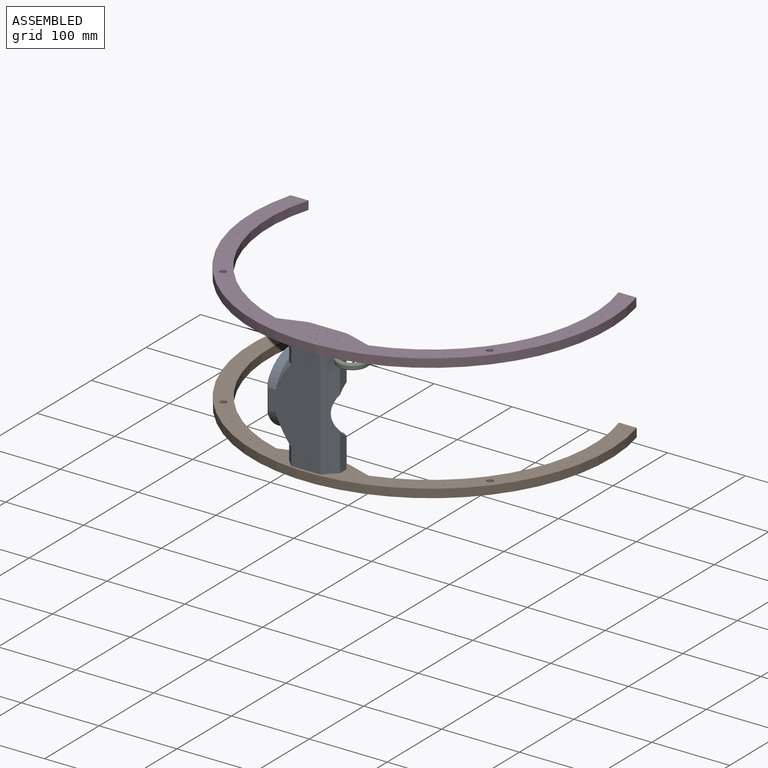
[diagram: assembled view]
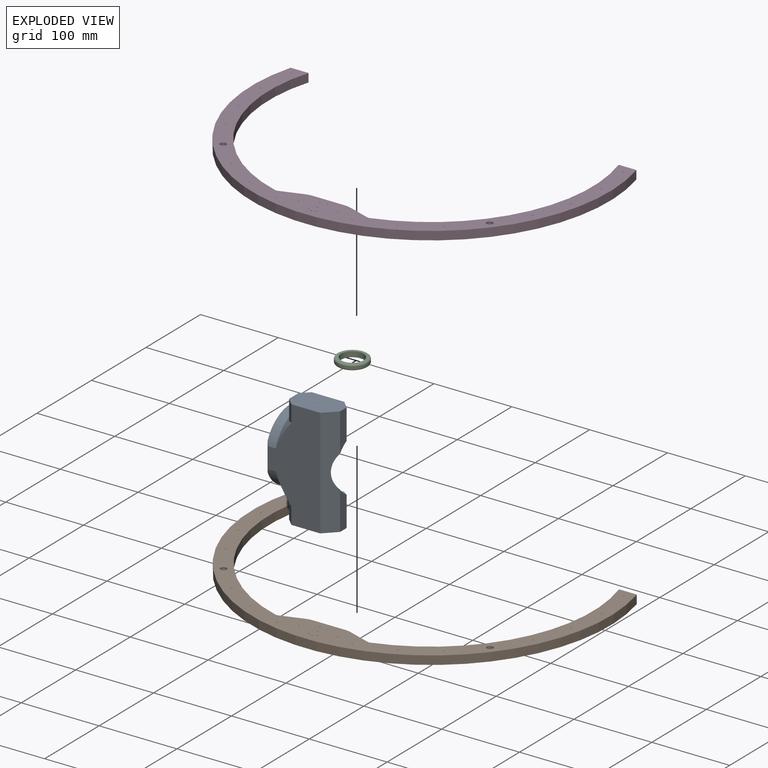
[diagram: exploded view]
GUIDED TOUR — MATED ASSEMBLY (Onshape document 583ccf91df39c11036320b96, AutoMate assembly 583ccf91df39c11036320b96_db331fde2a7be32577c9f7a0_26116c46a7ac03a35c773aca_default)

This assembly has 4 components, labeled P0..P3 below (a component is one placed occurrence of a part; the same part can appear more than once), held together by 3 mates. A mate is a constraint between two components; its type names the relative motion it leaves free:
  FASTENED — locks the two components together rigidly (no relative motion),
  REVOLUTE — leaves rotation about the listed axis free (a hinge).
Axis/direction vectors are unit vectors and 'through' points are millimeter coordinates, both in the assembly's world frame.

MATES
  1. REVOLUTE "Revolute 1": P0 <-> P3, axis (0.000, 0.000, 1.000) through (-22.68, -209.72, 133.85) mm
  2. REVOLUTE "Revolute 2": P2 <-> P3, axis (0.000, 0.000, 1.000) through (26.05, -215.23, 133.85) mm
  3. FASTENED "Fastened 1": P1 <-> P0, direction (0.000, 0.000, 1.000) through (-21.92, -210.10, -6.15) mm

ASSEMBLY ORDER
  1. P2 — the base component [order verified]
  2. P0 [order verified]
  3. P1 [order verified]
  4. P3 [order verified]
Order-tag legend:
  [order verified] — this step's position reverses a verified removal order: the component was checked to insert without passing through the ones already placed.

Of the 4 components, 3 carry the full construction recipe — the FeatureScript program that regenerates the part's solid from scratch; the rest are supplied as boundary geometry only.
Each toured component is shown spotlighted twice — in the assembled view, then in the exploded view, where a leader line traces a displaced component back to its assembled socket (saturated green if recipe-attached, orange if geometry-only; every other component desaturated gray) — followed by its recipe or geometry summary and the mates that hold it.
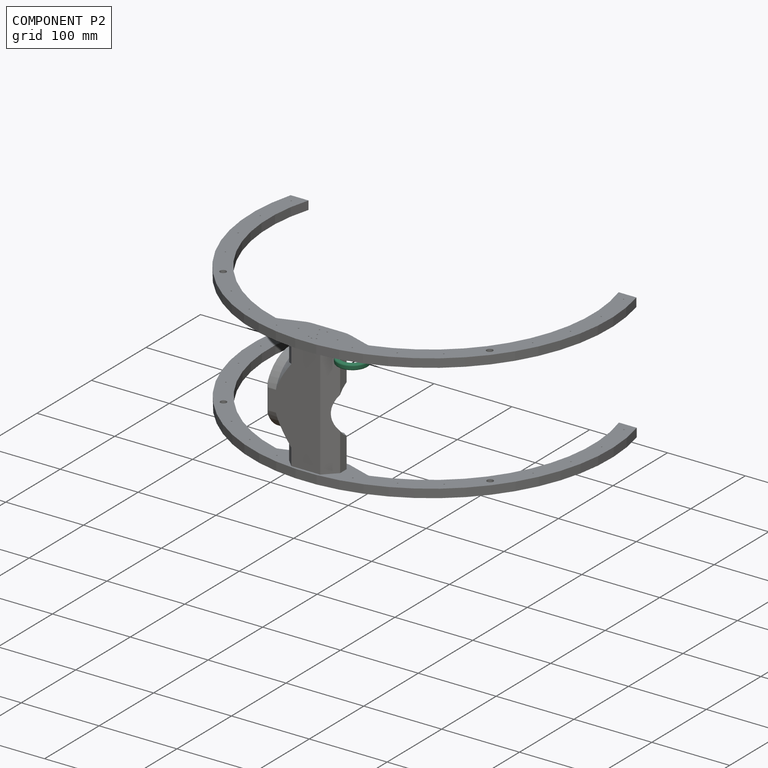
[diagram: component P2 — assembled]
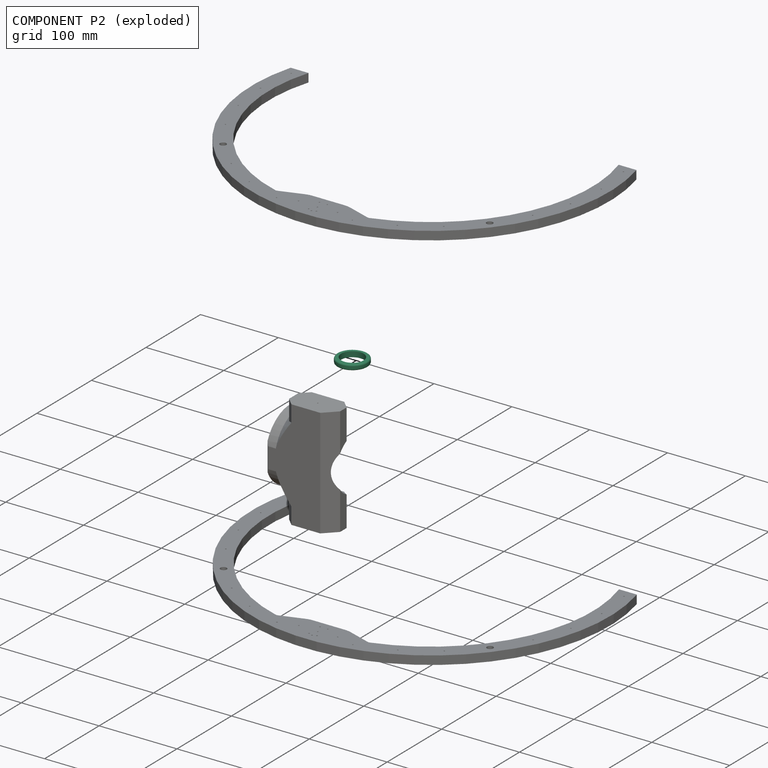
[diagram: component P2 — exploded]
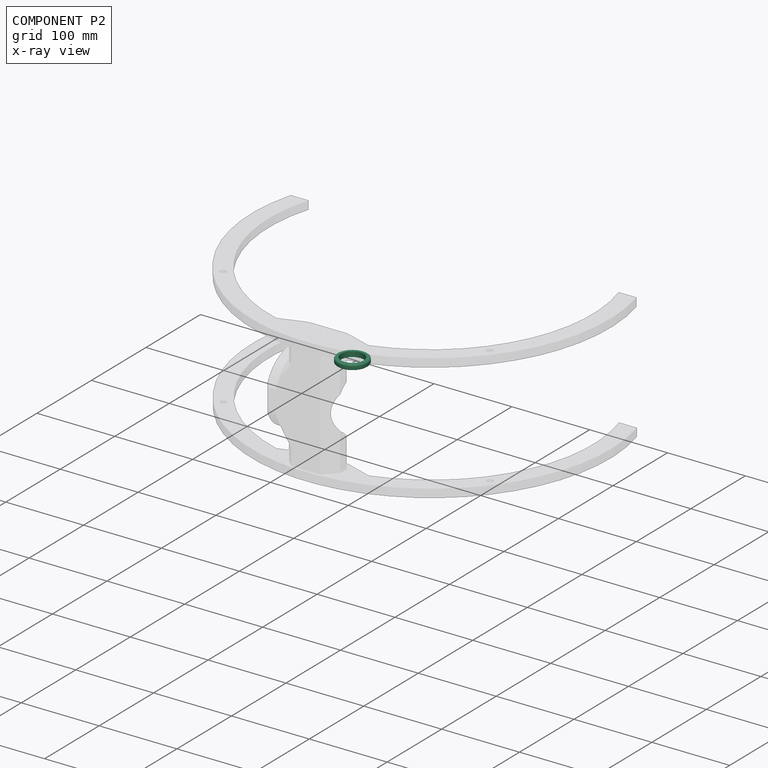
[diagram: component P2 — x-ray view]
COMPONENT P2 — recipe-attached (CADFS 00278941, mesh-verified: the recipe's output STEP matches this component's geometry to below the mesh-comparison resolution (tessellation chordal tolerance ~0.0834 mm)).
Held by: REVOLUTE mate "Revolute 2" to P3.
Construction recipe (FeatureScript — the CAD program that rebuilds this solid; sketch coordinates are in the units given by the * unit suffixes, e.g. mm):

FeatureScript 1511;
import(path : "onshape/std/geometry.fs", version : "1511.0");
import(path : "onshape/std/common.fs", version : "1511.0");
const mm = millimeter;
const VERTEX = EntityType.VERTEX;
const EDGE = EntityType.EDGE;
const FACE = EntityType.FACE;
const BODY = EntityType.BODY;
function v(x, y){return vector(x, y);}
function OD(order){return orderDisambiguation(order);}
function OSD(set){return originalSetDisambiguation(set);}
function TD(topology){return topologyDisambiguation(topology);}
function TDD(query){return trueDependencyDisambiguation(query);}
function sQuery(a, b, c) {return sketchEntityQuery(a, b, c);}

annotation { "Feature Type Name" : "Feature", "Feature Type Description" : "" }
export const myFeature = defineFeature(function(context is Context, id is Id, definition is map)
    precondition{}
    {
        {
            var Q0;
            Q0=qCreatedBy(makeId("Top.planeOp"),FACE);
            var sketch = newSketch(context, id + "F0", { "sketchPlane" : qUnion([Q0])});
            skCircle(sketch, "E0", {"center": v(0, 0) * mm, "radius": 19.5 * mm});
            skCircle(sketch, "E1", {"center": v(0, 0) * mm, "radius": 14.5 * mm});
            skSolve(sketch);
        }
        {
            var Q0;
            Q0 = qSketchRegion(id + "F0", true);
            extrude(context, id + "F1", {"entities" : qUnion([Q0]), "depth" : 3.5 * mm});
        }
        {
            var Q0;
            Q0=makeQuery(id+"F1.opExtrude","CAP_EDGE",EDGE,{"disambiguationData":[OSD([sQuery(id+"F0.wireOp",EDGE,"E0")])],"isStart":false});
            fillet(context, id + "F2", {"entities" : qUnion([Q0]), "radius" : 2 * mm, "tangentPropagation" : true, "allowEdgeOverflow" : false});
        }
        {
            var Q0;
            Q0=makeQuery(id+"F1.opExtrude","SWEPT_BODY",BODY,{"disambiguationData":[OSD([sQuery(id+"F0.wireOp",EDGE,"E0"),sQuery(id+"F0.wireOp",EDGE,"E1")])]});
            var Q1;
            Q1=qCreatedBy(makeId("Top.planeOp"),FACE);
            mirror(context, id + "F3", {"operationType" : NewBodyOperationType.ADD, "entities" : qUnion([Q0]), "mirrorPlane" : qUnion([Q1])});
        }
    });
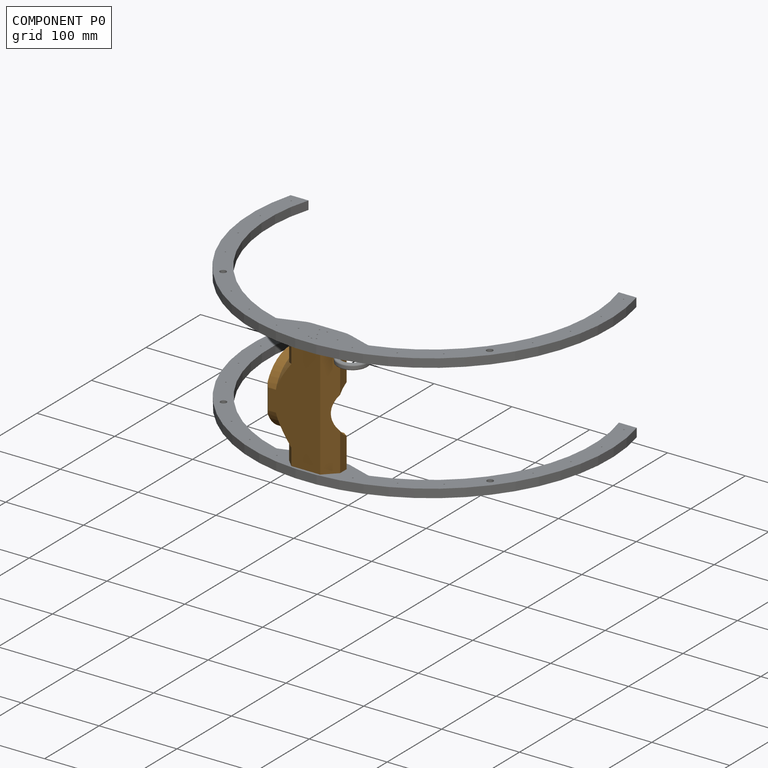
[diagram: component P0 — assembled]
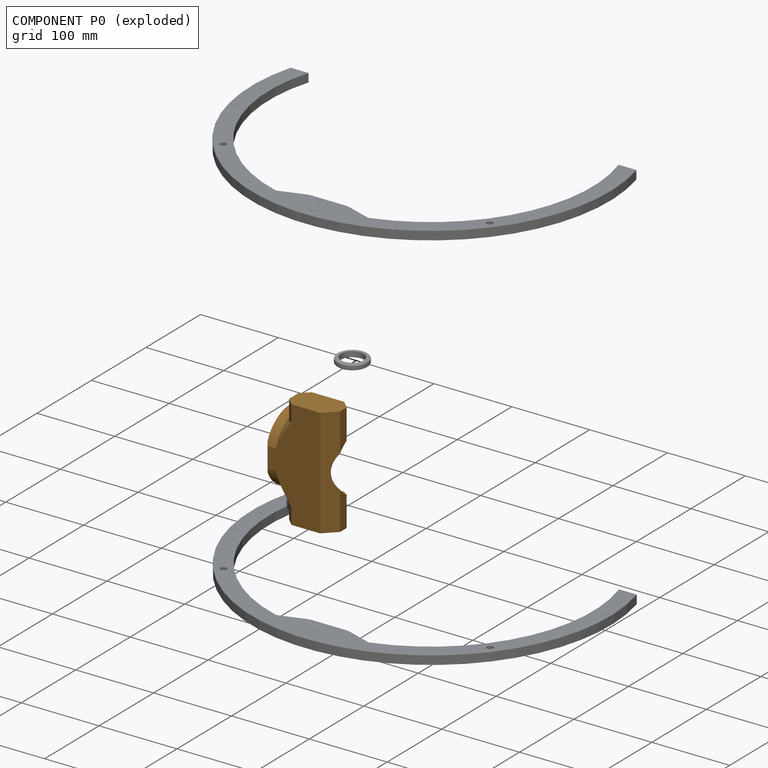
[diagram: component P0 — exploded]
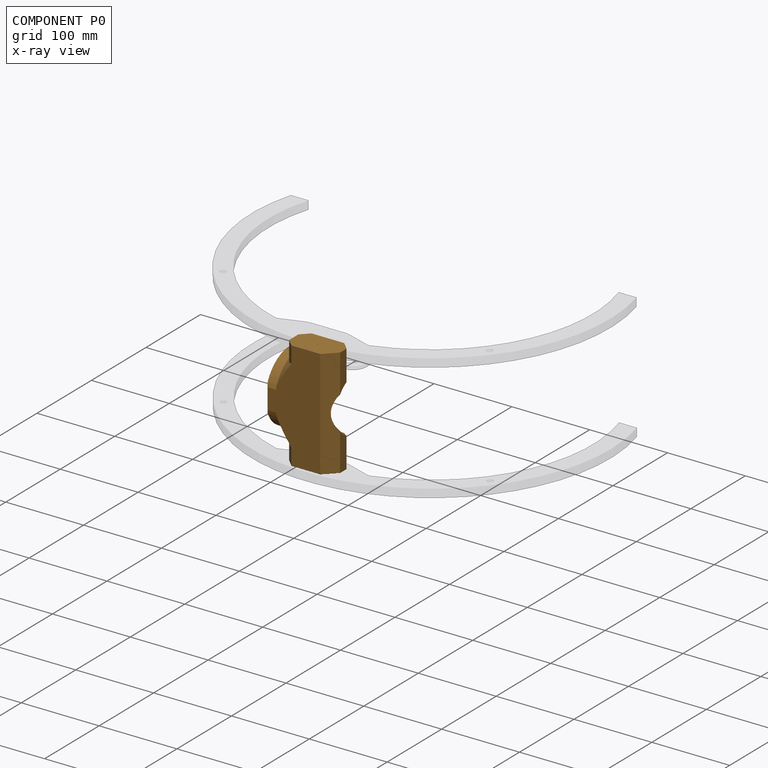
[diagram: component P0 — x-ray view]
COMPONENT P0 — geometry summary (no construction recipe available for this part):
  bounding box: 140.0 x 107.1 x 84.0 mm
  B-rep topology: 1 solid, 32 faces, 168 edges
  volume: 264262 mm^3 (21% of its bounding box)
Held by: REVOLUTE mate "Revolute 1" to P3; FASTENED mate "Fastened 1" to P1.
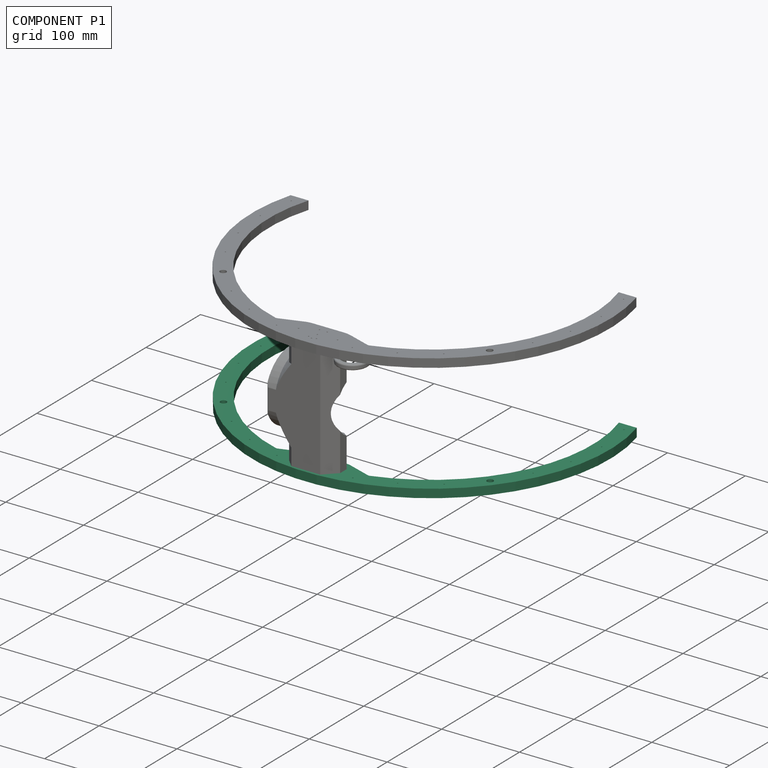
[diagram: component P1 — assembled]
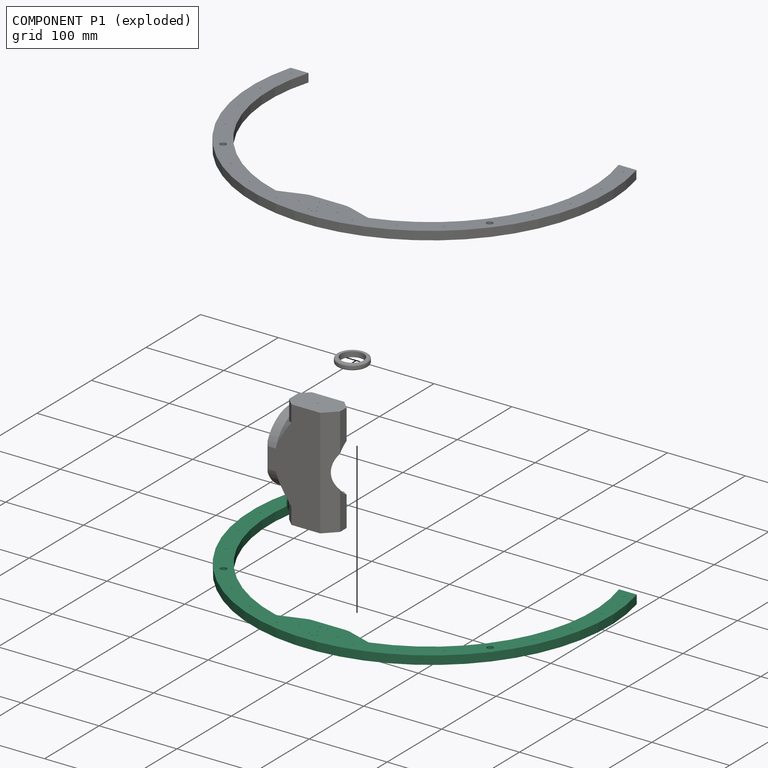
[diagram: component P1 — exploded]
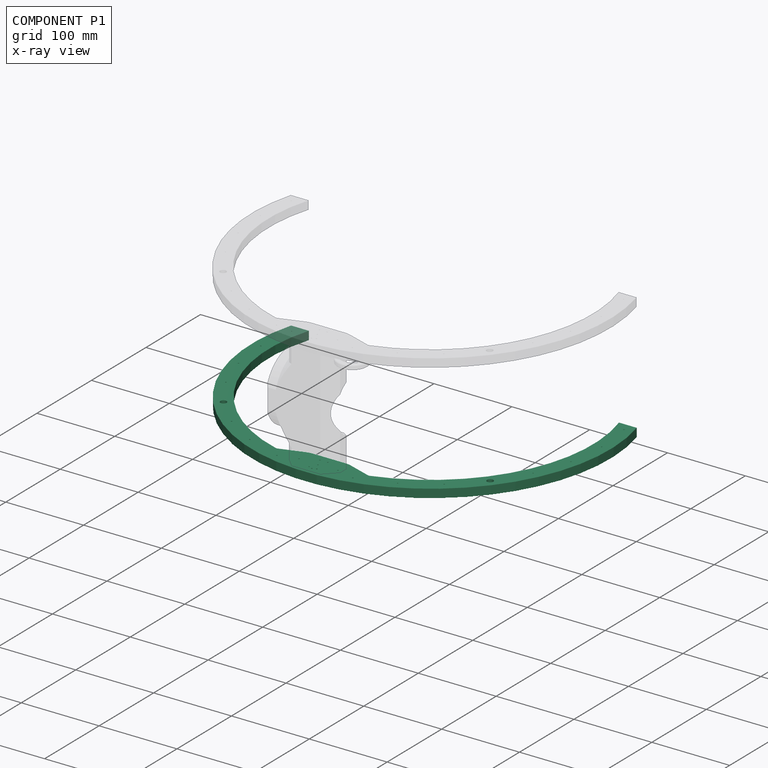
[diagram: component P1 — x-ray view]
COMPONENT P1 — recipe-attached (CADFS 00352402, mesh-verified: the recipe's output STEP matches this component's geometry to below the mesh-comparison resolution (tessellation chordal tolerance ~0.815 mm)).
Held by: FASTENED mate "Fastened 1" to P0.
Construction recipe (FeatureScript — the CAD program that rebuilds this solid; sketch coordinates are in the units given by the * unit suffixes, e.g. mm):

FeatureScript 1511;
import(path : "onshape/std/geometry.fs", version : "1511.0");
import(path : "onshape/std/common.fs", version : "1511.0");
const mm = millimeter;
const VERTEX = EntityType.VERTEX;
const EDGE = EntityType.EDGE;
const FACE = EntityType.FACE;
const BODY = EntityType.BODY;
function v(x, y){return vector(x, y);}
function OD(order){return orderDisambiguation(order);}
function OSD(set){return originalSetDisambiguation(set);}
function TD(topology){return topologyDisambiguation(topology);}
function TDD(query){return trueDependencyDisambiguation(query);}
function sQuery(a, b, c) {return sketchEntityQuery(a, b, c);}

annotation { "Feature Type Name" : "Feature", "Feature Type Description" : "" }
export const myFeature = defineFeature(function(context is Context, id is Id, definition is map)
    precondition{}
    {
        {
            var Q0;
            Q0=qCreatedBy(makeId("Top.planeOp"),FACE);
            var sketch = newSketch(context, id + "F0", { "sketchPlane" : qUnion([Q0])});
            skArc(sketch, "E0", {"start": v(-199.16, 60) * mm, "mid": v(-183.03, -98.8) * mm, "end": v(-59.12, -199.42) * mm});
            skArc(sketch, "E1", {"start": v(-222.04, 60) * mm, "mid": v(0, -230) * mm, "end": v(222.04, 60) * mm});
            skLineSegment(sketch, "E2", {"start": v(0, 0) * mm, "end": v(-114.72, 0) * mm, "construction": true});
            skLineSegment(sketch, "E3", {"start": v(0, 0) * mm, "end": v(0, 60) * mm, "construction": true});
            skLineSegment(sketch, "E4", {"start": v(199.16, 60) * mm, "end": v(222.04, 60) * mm});
            skLineSegment(sketch, "E5.MirrorCS", {"start": v(-199.16, 60) * mm, "end": v(-222.04, 60) * mm});
            skLineSegment(sketch, "E6", {"start": v(0, -208) * mm, "end": v(0, -188) * mm, "construction": true});
            skLineSegment(sketch, "E7", {"start": v(0, -188) * mm, "end": v(25, -188) * mm});
            skLineSegment(sketch, "E8", {"start": v(25, -188) * mm, "end": v(59.12, -199.42) * mm});
            skLineSegment(sketch, "E9.MirrorCS", {"start": v(0, -188) * mm, "end": v(-25, -188) * mm});
            skLineSegment(sketch, "E10.MirrorCS", {"start": v(-25, -188) * mm, "end": v(-59.12, -199.42) * mm});
            skArc(sketch, "E11.trimOffspring", {"start": v(59.12, -199.42) * mm, "mid": v(183.03, -98.8) * mm, "end": v(199.16, 60) * mm});
            skPoint(sketch, "E12.orphan", {"position": v(0, 60) * mm});
            skSolve(sketch);
        }
        {
            var Q0;
            Q0=qSketchRegion(id+"F0",true);
            extrude(context, id + "F1", {"entities" : qUnion([Q0]), "depth" : 11 * mm});
        }
        {
            var Q0;
            Q0=makeQuery(id+"F1.opExtrude","SWEPT_EDGE",EDGE,{"disambiguationData":[OSD([sQuery(id+"F0.wireOp",EDGE,"E7"),sQuery(id+"F0.wireOp",EDGE,"E8")])]});
            var Q1;
            Q1=makeQuery(id+"F1.opExtrude","SWEPT_EDGE",EDGE,{"disambiguationData":[OSD([sQuery(id+"F0.wireOp",EDGE,"E9.MirrorCS"),sQuery(id+"F0.wireOp",EDGE,"E10.MirrorCS")])]});
            fillet(context, id + "F2", {"entities" : qUnion([Q0, Q1]), "radius" : 28.52 * mm, "tangentPropagation" : true, "allowEdgeOverflow" : false});
        }
        {
            var Q0;
            Q0=makeQuery(id+"F1.opExtrude","SWEPT_EDGE",EDGE,{"disambiguationData":[OSD([sQuery(id+"F0.wireOp",EDGE,"E8"),sQuery(id+"F0.wireOp",EDGE,"E11.trimOffspring")])]});
            var Q1;
            Q1=makeQuery(id+"F1.opExtrude","SWEPT_EDGE",EDGE,{"disambiguationData":[OSD([sQuery(id+"F0.wireOp",EDGE,"E0"),sQuery(id+"F0.wireOp",EDGE,"E10.MirrorCS")])]});
            fillet(context, id + "F3", {"entities" : qUnion([Q0, Q1]), "radius" : 5 * mm, "tangentPropagation" : true, "allowEdgeOverflow" : false});
        }
        {
            var Q0;
            Q0=qCreatedBy(makeId("Top.planeOp"),FACE);
            var sketch = newSketch(context, id + "F4", { "sketchPlane" : qUnion([Q0])});
            skLineSegment(sketch, "E13", {"start": v(0, 0) * mm, "end": v(174.2, -171.38) * mm, "construction": true});
            skLineSegment(sketch, "E14", {"start": v(0, 0) * mm, "end": v(0, 36.6) * mm, "construction": true});
            skLineSegment(sketch, "E15.MirrorCS", {"start": v(0, 0) * mm, "end": v(-174.2, -171.38) * mm, "construction": true});
            skSolve(sketch);
        }
        {
            var Q0;
            Q0=makeQuery(id+"F1.opExtrude","CAP_FACE",FACE,{"disambiguationData":[OSD([sQuery(id+"F0.wireOp",EDGE,"E0"),sQuery(id+"F0.wireOp",EDGE,"E1"),sQuery(id+"F0.wireOp",EDGE,"E4"),sQuery(id+"F0.wireOp",EDGE,"E5.MirrorCS"),sQuery(id+"F0.wireOp",EDGE,"E7"),sQuery(id+"F0.wireOp",EDGE,"E8"),sQuery(id+"F0.wireOp",EDGE,"E9.MirrorCS"),sQuery(id+"F0.wireOp",EDGE,"E10.MirrorCS"),sQuery(id+"F0.wireOp",EDGE,"E11.trimOffspring")])],"isStart":false});
            var sketch = newSketch(context, id + "F5", { "sketchPlane" : qUnion([Q0])});
            skArc(sketch, "E16.0", {"start": v(-217.44, 26.07) * mm, "mid": v(0, -219) * mm, "end": v(217.44, 26.07) * mm, "construction": true});
            skCircle(sketch, "E17", {"center": v(0, -219) * mm, "radius": 0.75 * mm});
            skCircle(sketch, "E18.1.0", {"center": v(48.73, -213.5) * mm, "radius": 0.75 * mm});
            skCircle(sketch, "E18.2.0", {"center": v(95.02, -197.31) * mm, "radius": 0.75 * mm});
            skCircle(sketch, "E18.3.0", {"center": v(136.54, -171.22) * mm, "radius": 0.75 * mm});
            skCircle(sketch, "E18.4.0", {"center": v(171.22, -136.54) * mm, "radius": 0.75 * mm});
            skCircle(sketch, "E18.5.0", {"center": v(197.31, -95.02) * mm, "radius": 0.75 * mm});
            skCircle(sketch, "E18.6.0", {"center": v(213.5, -48.73) * mm, "radius": 0.75 * mm});
            skCircle(sketch, "E18.7.0", {"center": v(219, 0) * mm, "radius": 0.75 * mm});
            skCircle(sketch, "E18.8.0", {"center": v(213.5, 48.73) * mm, "radius": 0.75 * mm});
            skCircle(sketch, "E18.9.0", {"center": v(197.31, 95.02) * mm, "radius": 0.75 * mm});
            skCircle(sketch, "E18.10.0", {"center": v(171.22, 136.54) * mm, "radius": 0.75 * mm});
            skCircle(sketch, "E18.11.0", {"center": v(136.54, 171.22) * mm, "radius": 0.75 * mm});
            skCircle(sketch, "E18.12.0", {"center": v(95.02, 197.31) * mm, "radius": 0.75 * mm});
            skCircle(sketch, "E18.13.0", {"center": v(48.73, 213.5) * mm, "radius": 0.75 * mm});
            skCircle(sketch, "E18.14.0", {"center": v(0, 219) * mm, "radius": 0.75 * mm});
            skCircle(sketch, "E18.15.0", {"center": v(-48.73, 213.5) * mm, "radius": 0.75 * mm});
            skCircle(sketch, "E18.16.0", {"center": v(-95.02, 197.31) * mm, "radius": 0.75 * mm});
            skCircle(sketch, "E18.17.0", {"center": v(-136.54, 171.22) * mm, "radius": 0.75 * mm});
            skCircle(sketch, "E18.18.0", {"center": v(-171.22, 136.54) * mm, "radius": 0.75 * mm});
            skCircle(sketch, "E18.19.0", {"center": v(-197.31, 95.02) * mm, "radius": 0.75 * mm});
            skCircle(sketch, "E18.20.0", {"center": v(-213.5, 48.73) * mm, "radius": 0.75 * mm});
            skCircle(sketch, "E18.21.0", {"center": v(-219, 0) * mm, "radius": 0.75 * mm});
            skCircle(sketch, "E18.22.0", {"center": v(-213.5, -48.73) * mm, "radius": 0.75 * mm});
            skCircle(sketch, "E18.23.0", {"center": v(-197.31, -95.02) * mm, "radius": 0.75 * mm});
            skCircle(sketch, "E18.24.0", {"center": v(-171.22, -136.54) * mm, "radius": 0.75 * mm});
            skCircle(sketch, "E18.25.0", {"center": v(-136.54, -171.22) * mm, "radius": 0.75 * mm});
            skCircle(sketch, "E18.26.0", {"center": v(-95.02, -197.31) * mm, "radius": 0.75 * mm});
            skCircle(sketch, "E18.27.0", {"center": v(-48.73, -213.5) * mm, "radius": 0.75 * mm});
            skCircle(sketch, "E19", {"center": v(-5, -197) * mm, "radius": 0.75 * mm});
            skLineSegment(sketch, "E20", {"start": v(0, 0) * mm, "end": v(0, -93.12) * mm, "construction": true});
            skLineSegment(sketch, "E21", {"start": v(0, -219) * mm, "end": v(0, -197) * mm, "construction": true});
            skLineSegment(sketch, "E22", {"start": v(0, -197) * mm, "end": v(-5, -197) * mm, "construction": true});
            skCircle(sketch, "E23.MirrorC", {"center": v(5, -197) * mm, "radius": 0.75 * mm});
            skLineSegment(sketch, "E24", {"start": v(-5, -197) * mm, "end": v(-5, -217) * mm, "construction": true});
            skPoint(sketch, "E25.endSnap0", {"position": v(-5, -207) * mm});
            skLineSegment(sketch, "E26", {"start": v(-5, -207) * mm, "end": v(-25, -207) * mm, "construction": true});
            skCircle(sketch, "E27", {"center": v(0, -208) * mm, "radius": 0.75 * mm});
            skCircle(sketch, "E28.MirrorC", {"center": v(-5, -217) * mm, "radius": 0.75 * mm});
            skCircle(sketch, "E29", {"center": v(-25, -207) * mm, "radius": 0.75 * mm});
            skCircle(sketch, "E30.MirrorC", {"center": v(5, -217) * mm, "radius": 0.75 * mm});
            skCircle(sketch, "E31.MirrorC", {"center": v(25, -207) * mm, "radius": 0.75 * mm});
            skSolve(sketch);
        }
        {
            var Q0;
            Q0=qSketchRegion(id+"F5",true);
            extrude(context, id + "F6", {"entities" : qUnion([Q0]), "operationType" : NewBodyOperationType.REMOVE, "endBound" : BoundingType.THROUGH_ALL, "oppositeDirection" : true, "depth" : 25 * mm});
        }
        {
            var Q0;
            Q0=makeQuery(id+"F1.opExtrude","CAP_FACE",FACE,{"disambiguationData":[OSD([sQuery(id+"F0.wireOp",EDGE,"E0"),sQuery(id+"F0.wireOp",EDGE,"E1"),sQuery(id+"F0.wireOp",EDGE,"E4"),sQuery(id+"F0.wireOp",EDGE,"E5.MirrorCS"),sQuery(id+"F0.wireOp",EDGE,"E7"),sQuery(id+"F0.wireOp",EDGE,"E8"),sQuery(id+"F0.wireOp",EDGE,"E9.MirrorCS"),sQuery(id+"F0.wireOp",EDGE,"E10.MirrorCS"),sQuery(id+"F0.wireOp",EDGE,"E11.trimOffspring")])],"isStart":false});
            var sketch = newSketch(context, id + "F7", { "sketchPlane" : qUnion([Q0])});
            skCircle(sketch, "E32", {"center": v(-171.22, -136.54) * mm, "radius": 4 * mm});
            skLineSegment(sketch, "E33", {"start": v(0, 0) * mm, "end": v(0, -100.25) * mm, "construction": true});
            skCircle(sketch, "E34.MirrorC", {"center": v(171.22, -136.54) * mm, "radius": 4 * mm});
            skLineSegment(sketch, "E35", {"start": v(0, 0) * mm, "end": v(171.22, -136.54) * mm, "construction": true});
            skSolve(sketch);
        }
        {
            var Q0;
            Q0=qSketchRegion(id+"F7",true);
            extrude(context, id + "F8", {"entities" : qUnion([Q0]), "operationType" : NewBodyOperationType.REMOVE, "endBound" : BoundingType.THROUGH_ALL, "oppositeDirection" : true, "depth" : 25 * mm});
        }
    });
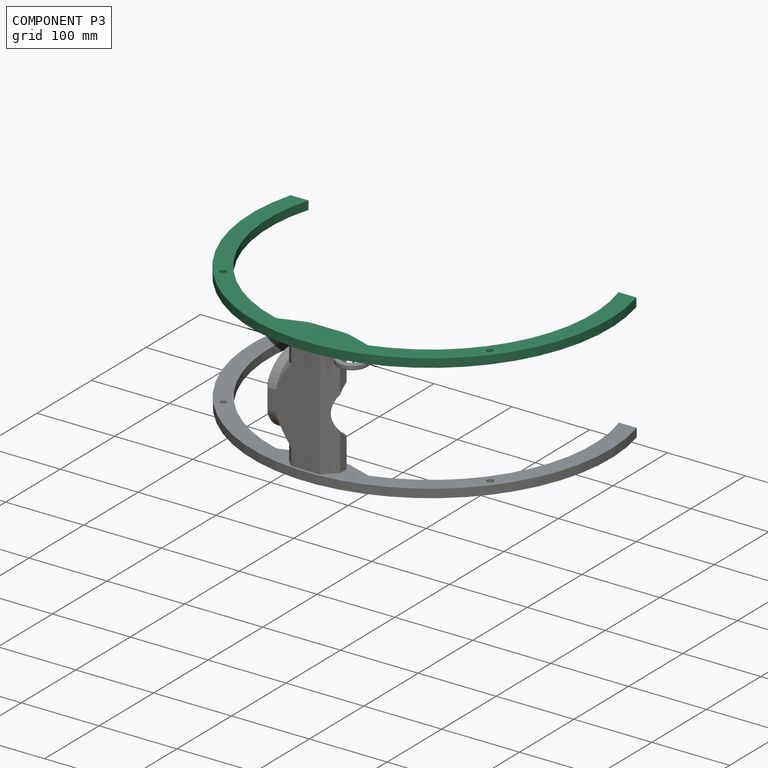
[diagram: component P3 — assembled]
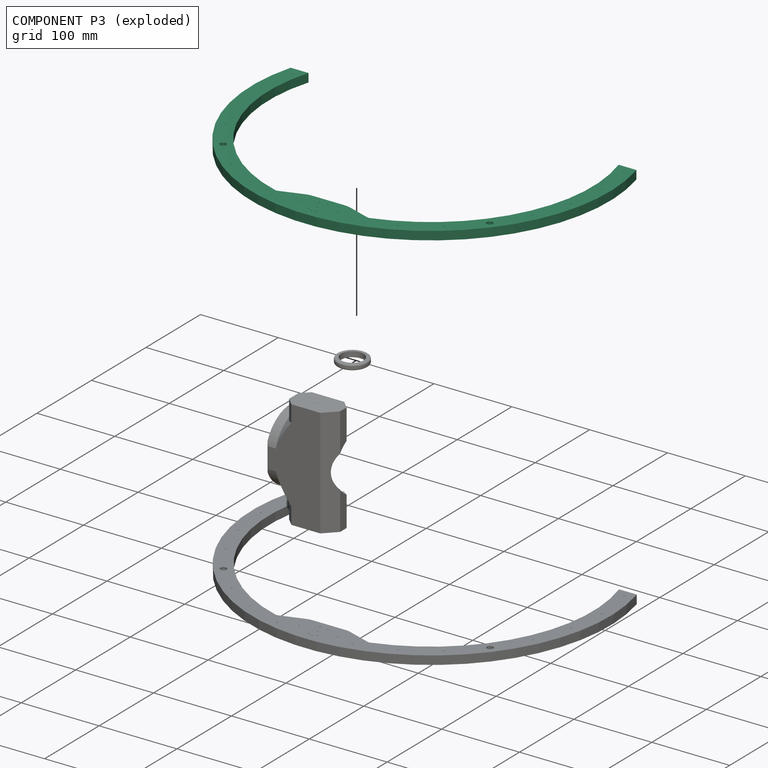
[diagram: component P3 — exploded]
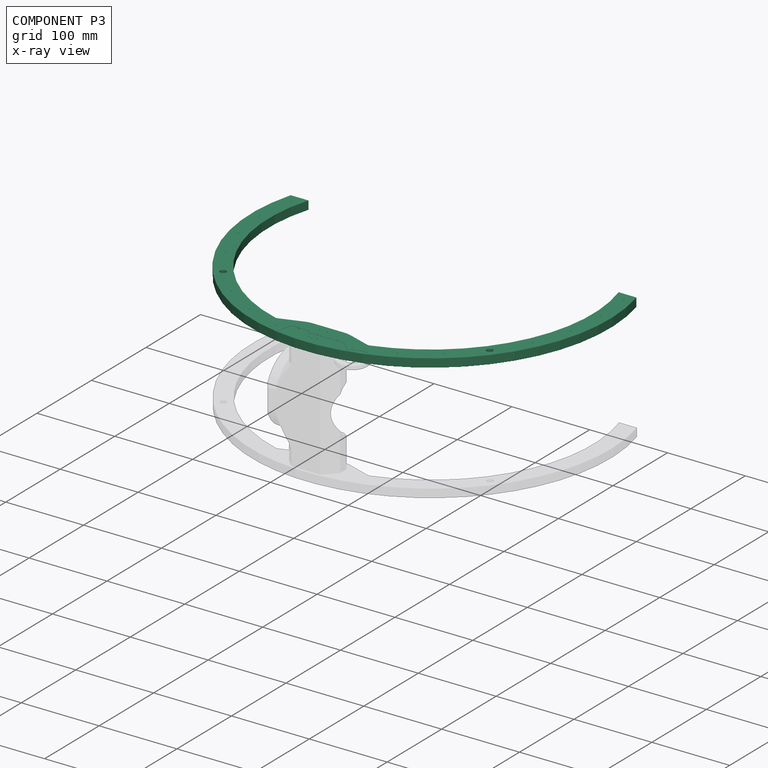
[diagram: component P3 — x-ray view]
COMPONENT P3 — same part as P1 (CADFS 00352402); its construction recipe is shown at P1.
Held by: REVOLUTE mate "Revolute 1" to P0; REVOLUTE mate "Revolute 2" to P2.
PROVENANCE & LICENSES
Assembly (occurrences, transforms, mates, per-part STEP geometry): AutoMate dataset, Zenodo record 7776208, CC0.
Construction recipes: CADFS (HuggingFace VladPyatov/CADFS, CC-BY-4.0, layered over the ABC dataset), FeatureScript reconstruction programs keyed by ABC model id.
Join: ABC meta listings map ABC model id -> Onshape documentId; within a shared document, parts are matched by geometric signature (bounding-box dims + volume at 0.1% relative tolerance, exact B-rep face/solid counts).
Verification: 3 of this assembly's 4 components carry a recipe attachment, and every attachment is mesh-verified: the CADFS STEP and the AutoMate member STEP were compared as meshes in their shared local frame (symmetric sampled-point-to-mesh distance); worst across the 3 attachments: below the mesh-comparison resolution (tessellation chordal tolerance ~0.815 mm) on a 544 mm part.
Renders: orthographic iso camera (az 35 / el 25); the floor grid conveys scale (grid pitch printed in each image; no ruler). In the exploded view each component is displaced by its stored offset vector: the offsets alone carry the explosion direction (mate normal/axis signs are not orientation cues and do not encode it), and separation distances are assigned per mate-chain, not proportionally to assembly-order depth.
